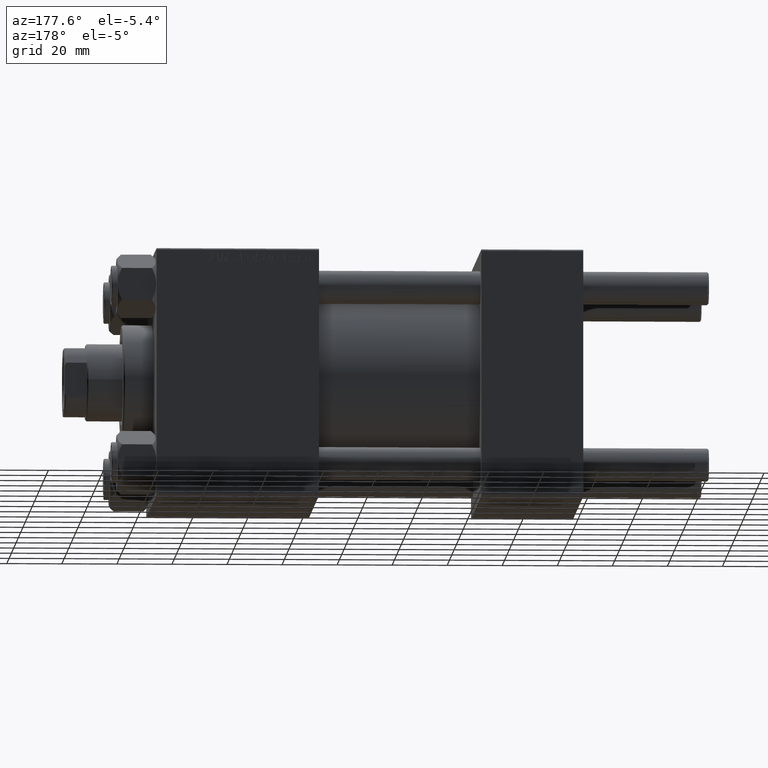
[diagram: clean part render]
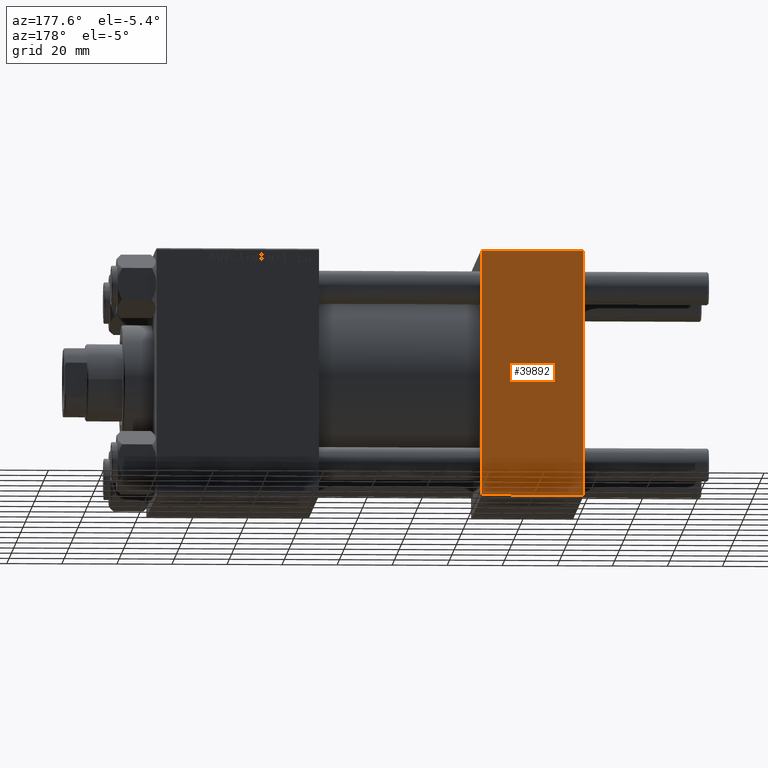
[diagram: same view with one face highlighted and labeled with its STEP entity id]
A machine part, auxiliary view. The second image highlights one B-rep face of the part: STEP entity #39892.
In plain terms, the highlighted planar face has unit normal (0, 1, 0).
Its self-contained STEP definition (entity closure, byte-faithful):
#1676 = ORIENTED_EDGE ( 'NONE', *, *, #48545, .T. ) ;
#2708 = CARTESIAN_POINT ( 'NONE',  ( 37.00000000000000000, 44.99999999999998579, -44.49999999999995737 ) ) ;
#2804 = PLANE ( 'NONE',  #45564 ) ;
#4391 = DIRECTION ( 'NONE',  ( 0.000000000000000000, 0.000000000000000000, -1.000000000000000000 ) ) ;
#6666 = LINE ( 'NONE', #22029, #16702 ) ;
#9615 = ORIENTED_EDGE ( 'NONE', *, *, #16204, .T. ) ;
#11690 = LINE ( 'NONE', #38890, #47727 ) ;
#14467 = CARTESIAN_POINT ( 'NONE',  ( 37.00000000000000000, 44.99999999999998579, 45.00000000000001421 ) ) ;
#15954 = VERTEX_POINT ( 'NONE', #34901 ) ;
#16204 = EDGE_CURVE ( 'NONE', #35414, #47980, #35287, .T. ) ;
#16702 = VECTOR ( 'NONE', #45412, 1000.000000000000000 ) ;
#17289 = VECTOR ( 'NONE', #39041, 1000.000000000000000 ) ;
#20115 = EDGE_LOOP ( 'NONE', ( #1676, #9615, #31254, #32106 ) ) ;
#21947 = FACE_OUTER_BOUND ( 'NONE', #20115, .T. ) ;
#22029 = CARTESIAN_POINT ( 'NONE',  ( 37.00000000000000000, 44.99999999999998579, 44.50000000000001421 ) ) ;
#22193 = DIRECTION ( 'NONE',  ( -0.000000000000000000, 1.000000000000000000, 0.000000000000000000 ) ) ;
#22371 = EDGE_CURVE ( 'NONE', #30064, #15954, #6666, .T. ) ;
#29823 = DIRECTION ( 'NONE',  ( 0.000000000000000000, 0.000000000000000000, -1.000000000000000000 ) ) ;
#30064 = VERTEX_POINT ( 'NONE', #40682 ) ;
#31254 = ORIENTED_EDGE ( 'NONE', *, *, #31592, .F. ) ;
#31301 = VECTOR ( 'NONE', #29823, 1000.000000000000000 ) ;
#31592 = EDGE_CURVE ( 'NONE', #30064, #47980, #11690, .T. ) ;
#32106 = ORIENTED_EDGE ( 'NONE', *, *, #22371, .T. ) ;
#34901 = CARTESIAN_POINT ( 'NONE',  ( 37.00000000000000000, 44.99999999999998579, 44.50000000000001421 ) ) ;
#35030 = CARTESIAN_POINT ( 'NONE',  ( 37.00000000000000000, 44.99999999999998579, -44.49999999999998579 ) ) ;
#35287 = LINE ( 'NONE', #35030, #17289 ) ;
#35414 = VERTEX_POINT ( 'NONE', #2708 ) ;
#37563 = DIRECTION ( 'NONE',  ( 0.000000000000000000, -0.000000000000000000, 1.000000000000000000 ) ) ;
#38890 = CARTESIAN_POINT ( 'NONE',  ( 0.000000000000000000, 44.99999999999998579, 45.00000000000001421 ) ) ;
#39041 = DIRECTION ( 'NONE',  ( -1.000000000000000000, 0.000000000000000000, 0.000000000000000000 ) ) ;
#39892 = ADVANCED_FACE ( 'NONE', ( #21947 ), #2804, .T. ) ;
#40682 = CARTESIAN_POINT ( 'NONE',  ( 0.000000000000000000, 44.99999999999998579, 44.50000000000001421 ) ) ;
#41313 = CARTESIAN_POINT ( 'NONE',  ( 37.00000000000000000, 44.99999999999998579, 45.00000000000001421 ) ) ;
#45412 = DIRECTION ( 'NONE',  ( 1.000000000000000000, 0.000000000000000000, 0.000000000000000000 ) ) ;
#45448 = CARTESIAN_POINT ( 'NONE',  ( 0.000000000000000000, 44.99999999999998579, -44.49999999999995737 ) ) ;
#45564 = AXIS2_PLACEMENT_3D ( 'NONE', #41313, #22193, #37563 ) ;
#47727 = VECTOR ( 'NONE', #4391, 1000.000000000000000 ) ;
#47980 = VERTEX_POINT ( 'NONE', #45448 ) ;
#48545 = EDGE_CURVE ( 'NONE', #15954, #35414, #49415, .T. ) ;
#49415 = LINE ( 'NONE', #14467, #31301 ) ;